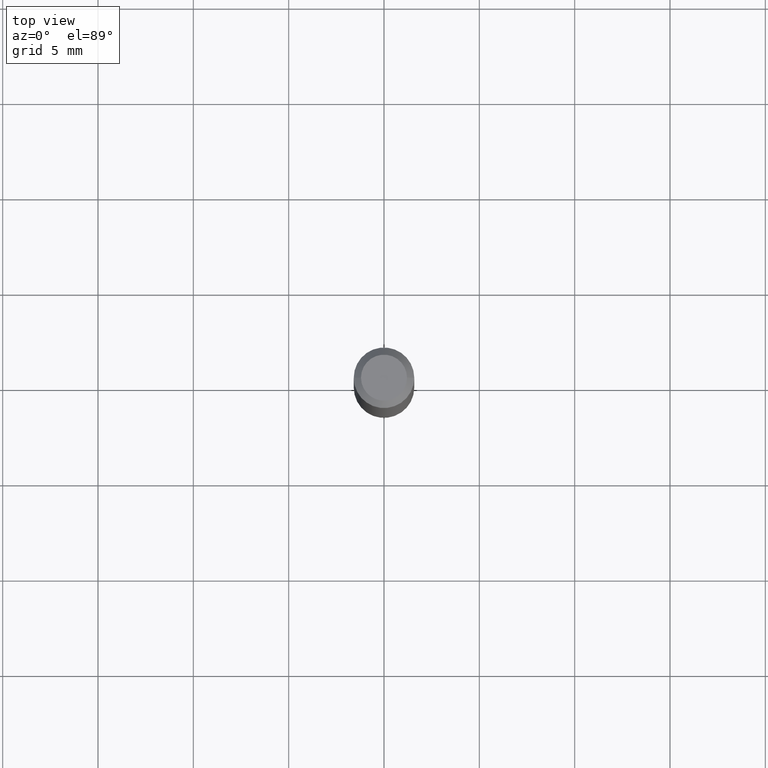
[diagram: clean part render]
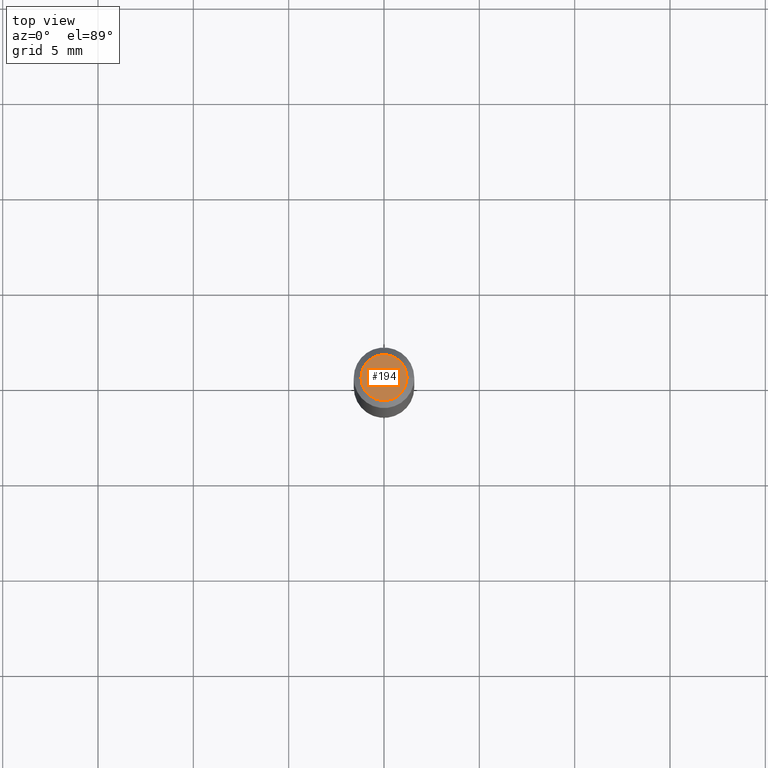
[diagram: same view with one face highlighted and labeled with its STEP entity id]
A machine part, top view. The second image highlights one B-rep face of the part: STEP entity #194.
In plain terms, the highlighted planar face has unit normal (0, -0, -1).
Its self-contained STEP definition (entity closure, byte-faithful):
#9 = DIRECTION ( 'NONE',  ( -2.445468806185136597E-29, 3.491481338843145583E-15, 1.000000000000000000 ) ) ;
#35 = FACE_OUTER_BOUND ( 'NONE', #193, .T. ) ;
#134 = ORIENTED_EDGE ( 'NONE', *, *, #261, .T. ) ;
#144 = CIRCLE ( 'NONE', #317, 0.04749999999999999362 ) ;
#146 = CARTESIAN_POINT ( 'NONE',  ( 3.316907271900976096E-16, 0.04749999999999999362, -4.235459955654642541E-17 ) ) ;
#193 = EDGE_LOOP ( 'NONE', ( #406, #134 ) ) ;
#194 = ADVANCED_FACE ( 'NONE', ( #35 ), #466, .F. ) ;
#214 = DIRECTION ( 'NONE',  ( -1.000000000000000000, 6.982962677686265922E-15, -4.876176775795935793E-29 ) ) ;
#222 = CARTESIAN_POINT ( 'NONE',  ( -6.039856226162565090E-45, 8.623313963198306787E-31, 2.469815280770059421E-16 ) ) ;
#227 = VERTEX_POINT ( 'NONE', #247 ) ;
#247 = CARTESIAN_POINT ( 'NONE',  ( -0.04749999999999999362, 3.578768372314215436E-16, 2.469815280770035755E-16 ) ) ;
#252 = CARTESIAN_POINT ( 'NONE',  ( -6.039856226162565090E-45, 8.623313963198306787E-31, 2.469815280770059421E-16 ) ) ;
#258 = CIRCLE ( 'NONE', #448, 0.04749999999999999362 ) ;
#261 = EDGE_CURVE ( 'NONE', #303, #227, #144, .T. ) ;
#280 = AXIS2_PLACEMENT_3D ( 'NONE', #146, #289, #214 ) ;
#289 = DIRECTION ( 'NONE',  ( 2.438088387897960049E-29, -3.491481338843145188E-15, -1.000000000000000000 ) ) ;
#290 = EDGE_CURVE ( 'NONE', #227, #303, #258, .T. ) ;
#295 = DIRECTION ( 'NONE',  ( 1.000000000000000000, -6.982962677686267499E-15, 4.852736867747366768E-29 ) ) ;
#303 = VERTEX_POINT ( 'NONE', #425 ) ;
#317 = AXIS2_PLACEMENT_3D ( 'NONE', #222, #9, #295 ) ;
#354 = DIRECTION ( 'NONE',  ( -2.445468806185136597E-29, 3.491481338843145583E-15, 1.000000000000000000 ) ) ;
#378 = DIRECTION ( 'NONE',  ( 1.000000000000000000, -6.982962677686267499E-15, 4.852736867747366768E-29 ) ) ;
#406 = ORIENTED_EDGE ( 'NONE', *, *, #290, .T. ) ;
#425 = CARTESIAN_POINT ( 'NONE',  ( 0.04749999999999999362, -4.035134999187574186E-16, 2.469815280770085059E-16 ) ) ;
#448 = AXIS2_PLACEMENT_3D ( 'NONE', #252, #354, #378 ) ;
#466 = PLANE ( 'NONE',  #280 ) ;